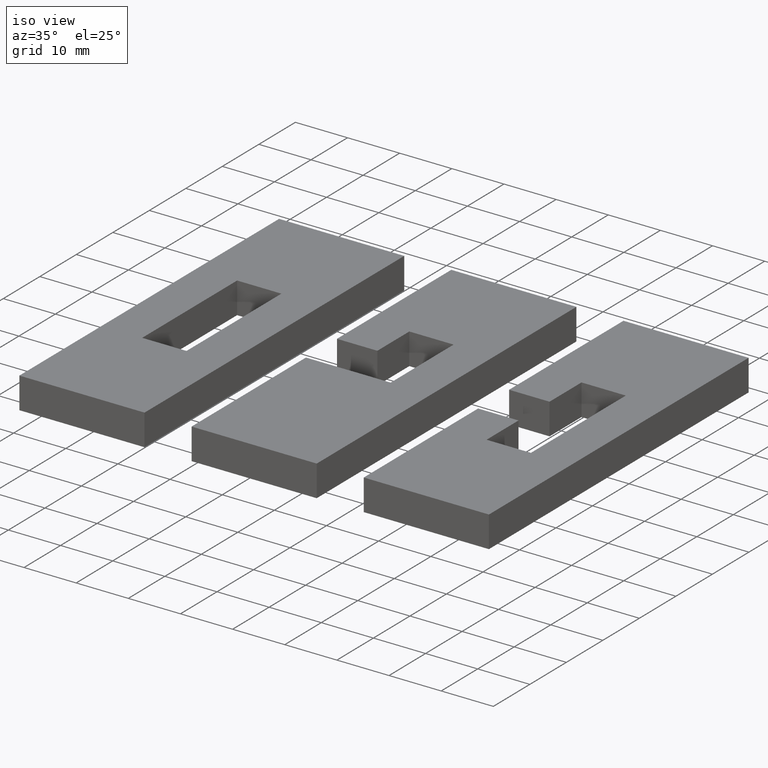
[diagram: clean part render]
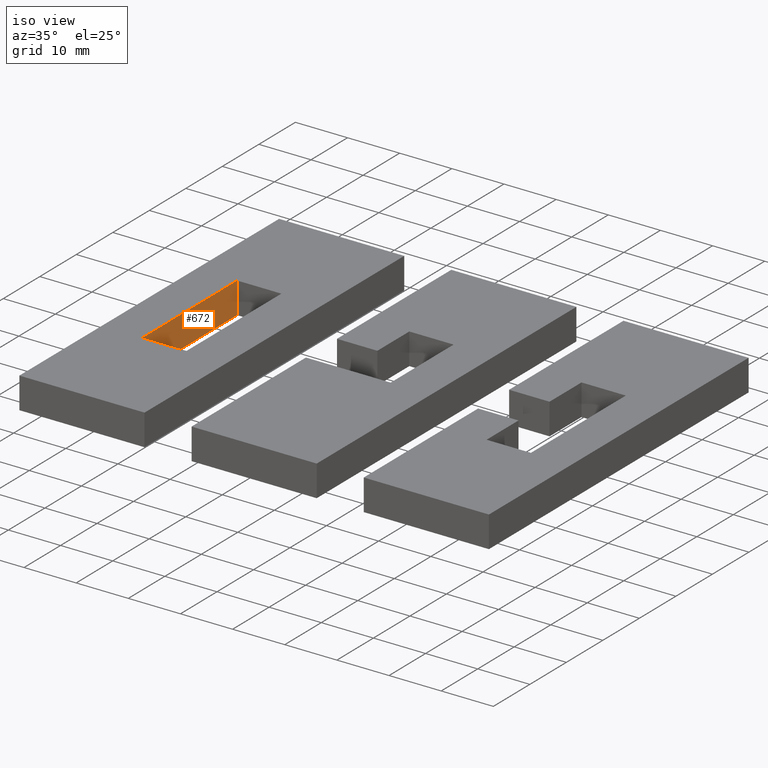
[diagram: same view with one face highlighted and labeled with its STEP entity id]
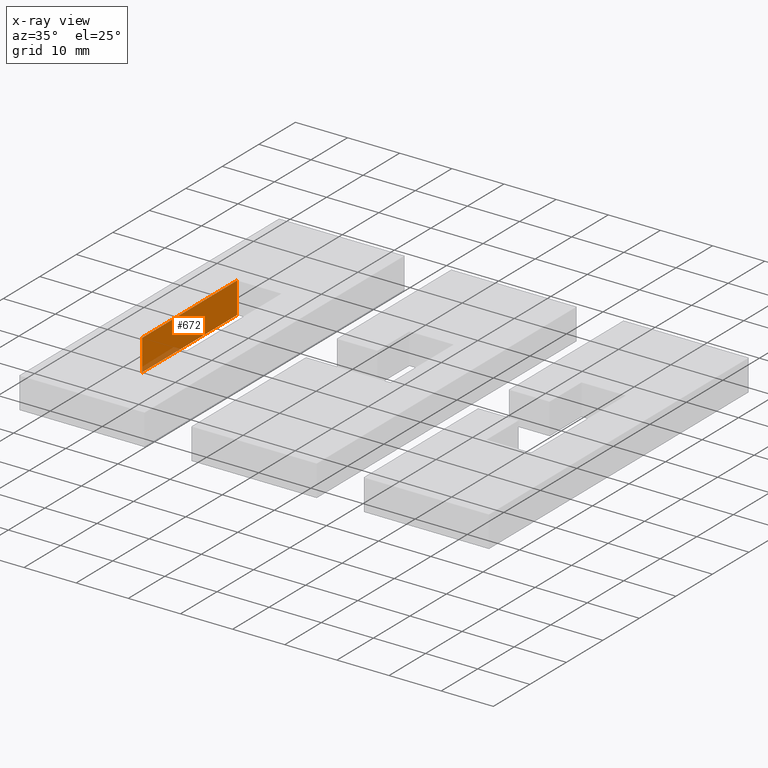
[diagram: x-ray of the same camera — body ghosted, the highlighted face saturated]
A machine part, iso view. The second image highlights one B-rep face of the part: STEP entity #672.
The next image is the same camera in x-ray: the body ghosted, the highlighted face saturated — about 6% of this face is hidden behind the body in this view.
In plain terms, the highlighted planar face has unit normal (-1, 0, 0).
Its self-contained STEP definition (entity closure, byte-faithful):
#188=ORIENTED_EDGE('',*,*,#284,.T.);
#189=ORIENTED_EDGE('',*,*,#269,.T.);
#190=ORIENTED_EDGE('',*,*,#285,.F.);
#191=ORIENTED_EDGE('',*,*,#276,.F.);
#269=EDGE_CURVE('',#335,#337,#419,.T.);
#276=EDGE_CURVE('',#344,#345,#426,.T.);
#284=EDGE_CURVE('',#344,#335,#434,.T.);
#285=EDGE_CURVE('',#345,#337,#435,.T.);
#335=VERTEX_POINT('',#1065);
#337=VERTEX_POINT('',#1069);
#344=VERTEX_POINT('',#1084);
#345=VERTEX_POINT('',#1086);
#419=LINE('',#1070,#509);
#426=LINE('',#1085,#516);
#434=LINE('',#1100,#524);
#435=LINE('',#1102,#525);
#509=VECTOR('',#880,1.);
#516=VECTOR('',#889,1.);
#524=VECTOR('',#909,1.);
#525=VECTOR('',#912,1.);
#562=EDGE_LOOP('',(#188,#189,#190,#191));
#600=FACE_BOUND('',#562,.T.);
#636=PLANE('',#745);
#672=ADVANCED_FACE('',(#600),#636,.F.);
#745=AXIS2_PLACEMENT_3D('',#1101,#910,#911);
#880=DIRECTION('',(-2.00160401074247E-16,-1.,0.));
#889=DIRECTION('',(-2.00160401074247E-16,-1.,0.));
#909=DIRECTION('',(0.,0.,1.));
#910=DIRECTION('',(-1.,2.00160401074247E-16,0.));
#911=DIRECTION('',(-2.00160401074247E-16,-1.,0.));
#912=DIRECTION('',(0.,0.,1.));
#1065=CARTESIAN_POINT('',(-0.00425,0.013,0.006));
#1069=CARTESIAN_POINT('',(-0.00425,-0.013,0.006));
#1070=CARTESIAN_POINT('',(-0.00425,-6.93889390390723E-18,0.006));
#1084=CARTESIAN_POINT('',(-0.00425,0.013,-6.93889390390723E-18));
#1085=CARTESIAN_POINT('',(-0.00425,7.45997814803719E-18,0.));
#1086=CARTESIAN_POINT('',(-0.00425,-0.013,-6.93889390390723E-18));
#1100=CARTESIAN_POINT('',(-0.00425,0.013,-0.0194));
#1101=CARTESIAN_POINT('',(-0.00425,-6.93889390390723E-18,-0.0194));
#1102=CARTESIAN_POINT('',(-0.00425,-0.013,-0.0194));